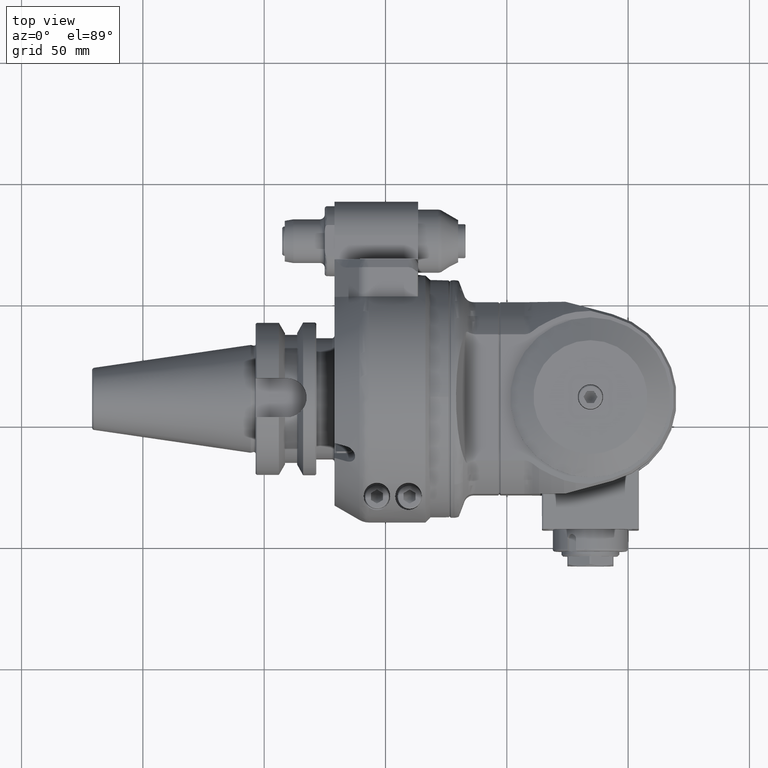
[diagram: clean part render]
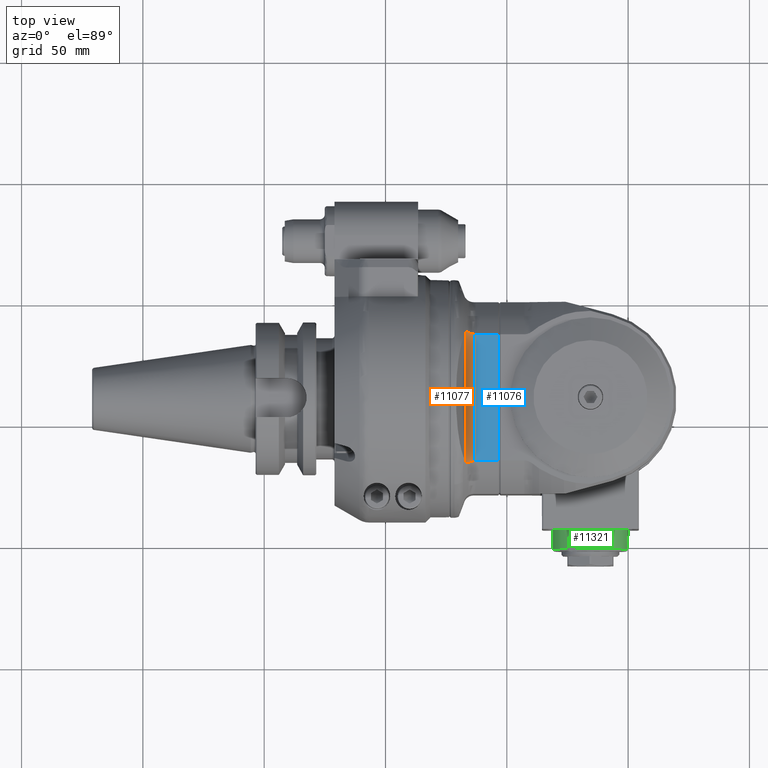
[diagram: same view with three faces highlighted in distinct colors, each labeled with its STEP entity id]
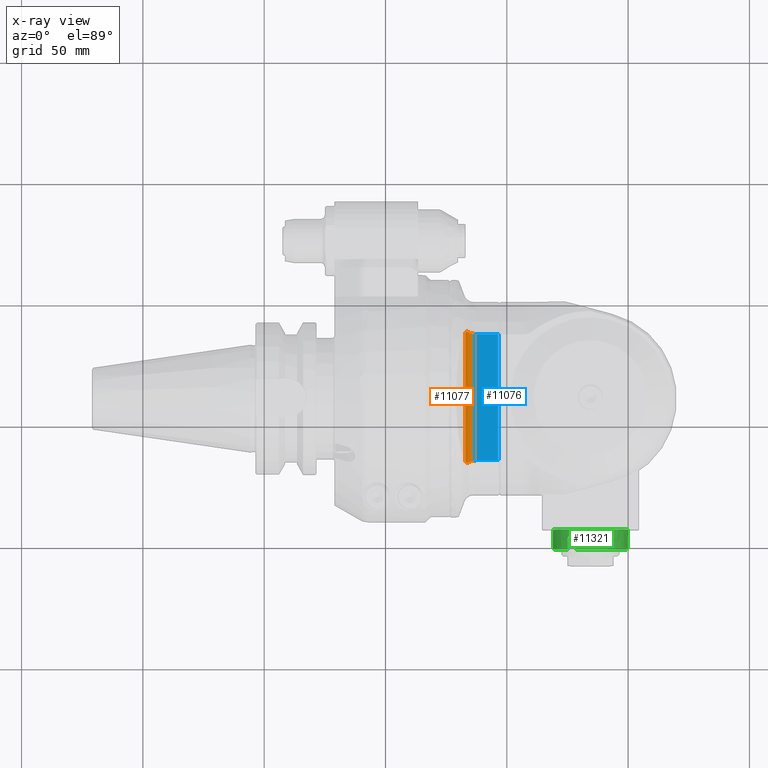
[diagram: x-ray of the same camera — body ghosted, the three highlighted faces saturated]
A machine part, top view with three faces highlighted in distinct colors.
The next image is the same camera in x-ray (body ghosted, the three faces saturated) — at least one of them is partly hidden behind the body in this view.
Their STEP definitions:

[orange] entity #11077 — the highlighted cylindrical surface (edge-blend (fillet) strip) has radius 4 mm, axis along (-0, -1, -0).
#84=CYLINDRICAL_SURFACE('',#11874,4.);
#1064=FACE_OUTER_BOUND('',#1763,.T.);
#1763=EDGE_LOOP('',(#7601,#7602,#7603,#7604,#7605,#7606));
#2580=LINE('',#16788,#3375);
#2583=LINE('',#16826,#3378);
#3375=VECTOR('',#13281,52.04411257838);
#3378=VECTOR('',#13286,53.07718683465);
#4092=B_SPLINE_CURVE_WITH_KNOTS('',3,(#16803,#16804,#16805,#16806,#16807,
#16808,#16809),.UNSPECIFIED.,.F.,.F.,(4,3,4),(-1.65922894939609,-1.39728854298585,
-1.3425854538473),.UNSPECIFIED.);
#4093=B_SPLINE_CURVE_WITH_KNOTS('',3,(#16811,#16812,#16813,#16814,#16815,
#16816,#16817,#16818,#16819,#16820,#16821,#16822,#16823,#16824),
 .UNSPECIFIED.,.F.,.F.,(4,2,2,2,2,2,4),(2.6658845095706,2.6959168155077,
2.74491415487439,2.79391149424107,2.84067867142616,2.88744584861126,2.89249356968134),
 .UNSPECIFIED.);
#4094=B_SPLINE_CURVE_WITH_KNOTS('',3,(#16828,#16829,#16830,#16831,#16832,
#16833,#16834,#16835,#16836,#16837,#16838,#16839,#16840,#16841),
 .UNSPECIFIED.,.F.,.F.,(4,2,2,2,2,2,4),(8.42520728345144,8.4302550045161,
8.4770221817012,8.52378935888629,8.57278669825297,8.62178403761966,8.65181634355813),
 .UNSPECIFIED.);
#4095=B_SPLINE_CURVE_WITH_KNOTS('',3,(#16842,#16843,#16844,#16845,#16846,
#16847,#16848),.UNSPECIFIED.,.F.,.F.,(4,3,4),(-3.44264118147774,-3.26853732629867,
-3.232802311775),.UNSPECIFIED.);
#4614=VERTEX_POINT('',#16786);
#4615=VERTEX_POINT('',#16787);
#4618=VERTEX_POINT('',#16802);
#4619=VERTEX_POINT('',#16810);
#4620=VERTEX_POINT('',#16825);
#4621=VERTEX_POINT('',#16827);
#5788=EDGE_CURVE('',#4614,#4615,#2580,.T.);
#5793=EDGE_CURVE('',#4615,#4618,#4092,.T.);
#5794=EDGE_CURVE('',#4619,#4618,#4093,.T.);
#5795=EDGE_CURVE('',#4619,#4620,#2583,.T.);
#5796=EDGE_CURVE('',#4621,#4620,#4094,.T.);
#5797=EDGE_CURVE('',#4621,#4614,#4095,.T.);
#7601=ORIENTED_EDGE('',*,*,#5788,.T.);
#7602=ORIENTED_EDGE('',*,*,#5793,.T.);
#7603=ORIENTED_EDGE('',*,*,#5794,.F.);
#7604=ORIENTED_EDGE('',*,*,#5795,.T.);
#7605=ORIENTED_EDGE('',*,*,#5796,.F.);
#7606=ORIENTED_EDGE('',*,*,#5797,.T.);
#11077=ADVANCED_FACE('',(#1064),#84,.F.);
#11874=AXIS2_PLACEMENT_3D('',#16801,#13284,#13285);
#13281=DIRECTION('',(-4.985147439005E-12,2.457472623853E-11,-1.));
#13284=DIRECTION('center_axis',(0.,0.,1.));
#13285=DIRECTION('ref_axis',(0.,1.,0.));
#13286=DIRECTION('',(-4.136573892543E-14,1.147263374081E-13,1.));
#16786=CARTESIAN_POINT('',(49.3008302109107,35.4999998792733,26.0220542775929));
#16787=CARTESIAN_POINT('',(49.300830210705,35.4999998796997,-26.0220542776161));
#16788=CARTESIAN_POINT('',(49.30083022615,35.49999963782,26.02205629274));
#16801=CARTESIAN_POINT('Origin',(49.30083015284,39.5,0.));
#16802=CARTESIAN_POINT('',(46.82842712475,36.3556044672,-26.8093457557));
#16803=CARTESIAN_POINT('Ctrl Pts',(49.3008302103751,35.5,-26.0220542754333));
#16804=CARTESIAN_POINT('Ctrl Pts',(48.5054864936385,35.49999998856,-26.1422721695277));
#16805=CARTESIAN_POINT('Ctrl Pts',(47.7404124742003,35.7544284716347,-26.3457342390481));
#16806=CARTESIAN_POINT('Ctrl Pts',(47.1644050016656,36.1183306528536,-26.6254588112142));
#16807=CARTESIAN_POINT('Ctrl Pts',(47.0441128002967,36.1943272267681,-26.6838759085042));
#16808=CARTESIAN_POINT('Ctrl Pts',(46.9322578739735,36.2739635107392,-26.745110994073));
#16809=CARTESIAN_POINT('Ctrl Pts',(46.8284271247479,36.3556044672018,-26.8093457556944));
#16810=CARTESIAN_POINT('',(45.5420596697,38.13191942669,-26.53859341733));
#16811=CARTESIAN_POINT('Ctrl Pts',(45.5420596696995,38.1319194266887,-26.5385934173287));
#16812=CARTESIAN_POINT('Ctrl Pts',(45.5692385130289,38.0572461683549,-26.5983087746406));
#16813=CARTESIAN_POINT('Ctrl Pts',(45.5995423594512,37.9808596693294,-26.6545391014777));
#16814=CARTESIAN_POINT('Ctrl Pts',(45.689454326532,37.7744725044755,-26.7913479993843));
#16815=CARTESIAN_POINT('Ctrl Pts',(45.7606254649951,37.6305287559443,-26.8708035245897));
#16816=CARTESIAN_POINT('Ctrl Pts',(45.9290424087627,37.341523798886,-26.984453906537));
#16817=CARTESIAN_POINT('Ctrl Pts',(46.026639483956,37.1964665607237,-27.0181374710907));
#16818=CARTESIAN_POINT('Ctrl Pts',(46.2204934076215,36.943488539093,-27.0360547337205));
#16819=CARTESIAN_POINT('Ctrl Pts',(46.3313118758777,36.8150116191118,-27.0237990627872));
#16820=CARTESIAN_POINT('Ctrl Pts',(46.5624311985908,36.5796622635566,-26.9537138165378));
#16821=CARTESIAN_POINT('Ctrl Pts',(46.6826589426715,36.4725916747272,-26.8963093571376));
#16822=CARTESIAN_POINT('Ctrl Pts',(46.8047878290806,36.3742991248609,-26.8238246033179));
#16823=CARTESIAN_POINT('Ctrl Pts',(46.8166329311371,36.3648781096851,-26.8166422186515));
#16824=CARTESIAN_POINT('Ctrl Pts',(46.8284271247492,36.3556044672008,-26.8093457556976));
#16825=CARTESIAN_POINT('',(45.5420596697,38.1319194267,26.53859341732));
#16826=CARTESIAN_POINT('',(45.5420596697,38.13191942669,-26.53859341733));
#16827=CARTESIAN_POINT('',(46.82842712471,36.35560446723,26.80934575572));
#16828=CARTESIAN_POINT('Ctrl Pts',(46.8284271247112,36.3556044672307,26.8093457557211));
#16829=CARTESIAN_POINT('Ctrl Pts',(46.8166329311117,36.3648781097054,26.8166422186669));
#16830=CARTESIAN_POINT('Ctrl Pts',(46.8047878290678,36.3742991248712,26.8238246033255));
#16831=CARTESIAN_POINT('Ctrl Pts',(46.6826589426715,36.4725916747272,26.8963093571376));
#16832=CARTESIAN_POINT('Ctrl Pts',(46.5624311985908,36.5796622635566,26.9537138165378));
#16833=CARTESIAN_POINT('Ctrl Pts',(46.3313118758777,36.8150116191118,27.0237990627872));
#16834=CARTESIAN_POINT('Ctrl Pts',(46.2204934076215,36.943488539093,27.0360547337205));
#16835=CARTESIAN_POINT('Ctrl Pts',(46.026639483956,37.1964665607237,27.0181374710907));
#16836=CARTESIAN_POINT('Ctrl Pts',(45.9290424087627,37.3415237988859,26.984453906537));
#16837=CARTESIAN_POINT('Ctrl Pts',(45.760625464995,37.6305287559443,26.8708035245897));
#16838=CARTESIAN_POINT('Ctrl Pts',(45.689454326532,37.7744725044755,26.7913479993843));
#16839=CARTESIAN_POINT('Ctrl Pts',(45.5995423594497,37.9808596693329,26.6545391014754));
#16840=CARTESIAN_POINT('Ctrl Pts',(45.5692385130261,38.0572461683618,26.5983087746355));
#16841=CARTESIAN_POINT('Ctrl Pts',(45.5420596696958,38.1319194266989,26.5385934173205));
#16842=CARTESIAN_POINT('Ctrl Pts',(46.82842712471,36.3556044672317,26.8093457557179));
#16843=CARTESIAN_POINT('Ctrl Pts',(47.3332584926103,35.958661210671,26.4970324687684));
#16844=CARTESIAN_POINT('Ctrl Pts',(48.0406964694671,35.6241588293982,26.2587953449599));
#16845=CARTESIAN_POINT('Ctrl Pts',(48.8160153550736,35.529489376432,26.1060979328915));
#16846=CARTESIAN_POINT('Ctrl Pts',(48.9751504391826,35.5100583634127,26.0747566151913));
#16847=CARTESIAN_POINT('Ctrl Pts',(49.1373461768559,35.4999999976401,26.046765234748));
#16848=CARTESIAN_POINT('Ctrl Pts',(49.3008302105796,35.5,26.0220542754024));

[blue] entity #11076 — the highlighted planar face has unit normal (0, -0, 1).
#1063=FACE_OUTER_BOUND('',#1762,.T.);
#1762=EDGE_LOOP('',(#7595,#7596,#7597,#7598,#7599,#7600));
#2578=LINE('',#16779,#3373);
#2580=LINE('',#16788,#3375);
#2581=LINE('',#16794,#3376);
#2582=LINE('',#16796,#3377);
#3373=VECTOR('',#13277,51.99038372623);
#3375=VECTOR('',#13281,52.04411257838);
#3376=VECTOR('',#13282,9.34314575068412);
#3377=VECTOR('',#13283,9.34314575065611);
#4090=B_SPLINE_CURVE_WITH_KNOTS('',3,(#16790,#16791,#16792,#16793),
 .UNSPECIFIED.,.F.,.F.,(4,4),(-1.52896138526577,-1.49450354649291),
 .UNSPECIFIED.);
#4091=B_SPLINE_CURVE_WITH_KNOTS('',3,(#16797,#16798,#16799,#16800),
 .UNSPECIFIED.,.F.,.F.,(4,4),(-1.49450354648957,-1.46004570769395),
 .UNSPECIFIED.);
#4611=VERTEX_POINT('',#16772);
#4612=VERTEX_POINT('',#16778);
#4614=VERTEX_POINT('',#16786);
#4615=VERTEX_POINT('',#16787);
#4616=VERTEX_POINT('',#16789);
#4617=VERTEX_POINT('',#16795);
#5785=EDGE_CURVE('',#4612,#4611,#2578,.T.);
#5788=EDGE_CURVE('',#4614,#4615,#2580,.T.);
#5789=EDGE_CURVE('',#4614,#4616,#4090,.T.);
#5790=EDGE_CURVE('',#4612,#4616,#2581,.T.);
#5791=EDGE_CURVE('',#4617,#4611,#2582,.T.);
#5792=EDGE_CURVE('',#4617,#4615,#4091,.T.);
#7595=ORIENTED_EDGE('',*,*,#5788,.F.);
#7596=ORIENTED_EDGE('',*,*,#5789,.T.);
#7597=ORIENTED_EDGE('',*,*,#5790,.F.);
#7598=ORIENTED_EDGE('',*,*,#5785,.T.);
#7599=ORIENTED_EDGE('',*,*,#5791,.F.);
#7600=ORIENTED_EDGE('',*,*,#5792,.T.);
#10704=PLANE('',#11873);
#11076=ADVANCED_FACE('',(#1063),#10704,.T.);
#11873=AXIS2_PLACEMENT_3D('',#16785,#13279,#13280);
#13277=DIRECTION('',(0.,1.066011239331E-14,-1.));
#13279=DIRECTION('center_axis',(0.,1.,0.));
#13280=DIRECTION('ref_axis',(1.,0.,0.));
#13281=DIRECTION('',(-4.985147439005E-12,2.457472623853E-11,-1.));
#13282=DIRECTION('',(-0.999999999999988,5.99464222955393E-8,-1.44745797196998E-7));
#13283=DIRECTION('',(0.999999999999988,-6.03921339411193E-8,-1.45821953774398E-7));
#16772=CARTESIAN_POINT('',(59.,35.5,-25.99519186311));
#16778=CARTESIAN_POINT('',(59.,35.5,25.99519186311));
#16779=CARTESIAN_POINT('',(59.,35.5,25.99519186311));
#16785=CARTESIAN_POINT('Origin',(56.15959713349,35.5,25.99519186311));
#16786=CARTESIAN_POINT('',(49.3008302109107,35.4999998792733,26.0220542775929));
#16787=CARTESIAN_POINT('',(49.300830210705,35.4999998796997,-26.0220542776161));
#16788=CARTESIAN_POINT('',(49.30083022615,35.49999963782,26.02205629274));
#16789=CARTESIAN_POINT('',(49.6568542494565,35.5000003310998,25.9951912151145));
#16790=CARTESIAN_POINT('Ctrl Pts',(49.3008302105796,35.5,26.0220542754024));
#16791=CARTESIAN_POINT('Ctrl Pts',(49.4218721277168,35.5,26.0037585346155));
#16792=CARTESIAN_POINT('Ctrl Pts',(49.5419947869026,35.5,25.9951918631119));
#16793=CARTESIAN_POINT('Ctrl Pts',(49.65685424949,35.5,25.9951918631119));
#16794=CARTESIAN_POINT('',(59.,35.5,25.99519186311));
#16795=CARTESIAN_POINT('',(49.6568542494901,35.5000003289525,-25.9951912165918));
#16796=CARTESIAN_POINT('',(49.65685424934,35.50000056425,-25.99519050068));
#16797=CARTESIAN_POINT('Ctrl Pts',(49.65685424949,35.5,-25.9951918631119));
#16798=CARTESIAN_POINT('Ctrl Pts',(49.541994786838,35.5,-25.9951918631119));
#16799=CARTESIAN_POINT('Ctrl Pts',(49.4218721275815,35.5,-26.0037585346254));
#16800=CARTESIAN_POINT('Ctrl Pts',(49.3008302103751,35.5,-26.0220542754333));

[green] entity #11321 — the highlighted cylindrical surface (bore or boss wall) has radius 15.5 mm, axis along (-0, -1, -0).
#134=CYLINDRICAL_SURFACE('',#12292,15.5);
#712=CIRCLE('',#12290,15.5);
#713=CIRCLE('',#12291,15.5);
#714=CIRCLE('',#12293,15.5);
#715=CIRCLE('',#12294,15.5);
#716=CIRCLE('',#12295,15.5);
#717=CIRCLE('',#12296,15.5);
#1308=FACE_OUTER_BOUND('',#2042,.T.);
#2042=EDGE_LOOP('',(#8758,#8759,#8760,#8761,#8762,#8763,#8764,#8765,#8766,
#8767,#8768,#8769,#8770,#8771,#8772,#8773,#8774));
#2843=LINE('',#18343,#3638);
#2844=LINE('',#18364,#3639);
#2845=LINE('',#18367,#3640);
#2846=LINE('',#18371,#3641);
#2847=LINE('',#18392,#3642);
#2848=LINE('',#18396,#3643);
#2849=LINE('',#18416,#3644);
#3638=VECTOR('',#14384,4.);
#3639=VECTOR('',#14385,4.);
#3640=VECTOR('',#14388,15.5);
#3641=VECTOR('',#14391,4.);
#3642=VECTOR('',#14392,4.);
#3643=VECTOR('',#14395,4.);
#3644=VECTOR('',#14396,4.);
#4126=B_SPLINE_CURVE_WITH_KNOTS('',3,(#18345,#18346,#18347,#18348,#18349,
#18350,#18351,#18352,#18353,#18354,#18355,#18356,#18357,#18358,#18359,#18360,
#18361,#18362),.UNSPECIFIED.,.F.,.F.,(4,2,2,2,2,2,2,2,4),(-1.206843167428,
-1.13141511138802,-1.05598705534804,-0.980559715459517,-0.905132375570997,
-0.829705035682476,-0.754277695793956,-0.678849639753977,-0.603421583713998),
 .UNSPECIFIED.);
#4127=B_SPLINE_CURVE_WITH_KNOTS('',3,(#18373,#18374,#18375,#18376,#18377,
#18378,#18379,#18380,#18381,#18382,#18383,#18384,#18385,#18386,#18387,#18388,
#18389,#18390),.UNSPECIFIED.,.F.,.F.,(4,2,2,2,2,2,2,2,4),(-1.206843167428,
-1.13141511138802,-1.05598705534804,-0.980559715459517,-0.905132375570997,
-0.829705035682476,-0.754277695793956,-0.678849639753977,-0.603421583713998),
 .UNSPECIFIED.);
#4128=B_SPLINE_CURVE_WITH_KNOTS('',3,(#18398,#18399,#18400,#18401,#18402,
#18403,#18404,#18405,#18406,#18407,#18408,#18409,#18410,#18411,#18412,#18413,
#18414,#18415),.UNSPECIFIED.,.F.,.F.,(4,2,2,2,2,2,2,2,4),(-1.206843167428,
-1.13141511138802,-1.05598705534804,-0.980559715459517,-0.905132375570997,
-0.829705035682476,-0.754277695793956,-0.678849639753977,-0.603421583713998),
 .UNSPECIFIED.);
#4953=VERTEX_POINT('',#18333);
#4954=VERTEX_POINT('',#18334);
#4955=VERTEX_POINT('',#18339);
#4956=VERTEX_POINT('',#18340);
#4957=VERTEX_POINT('',#18342);
#4958=VERTEX_POINT('',#18344);
#4959=VERTEX_POINT('',#18363);
#4960=VERTEX_POINT('',#18365);
#4961=VERTEX_POINT('',#18368);
#4962=VERTEX_POINT('',#18370);
#4963=VERTEX_POINT('',#18372);
#4964=VERTEX_POINT('',#18391);
#4965=VERTEX_POINT('',#18393);
#4966=VERTEX_POINT('',#18395);
#4967=VERTEX_POINT('',#18397);
#6320=EDGE_CURVE('',#4953,#4954,#712,.T.);
#6322=EDGE_CURVE('',#4954,#4953,#713,.T.);
#6323=EDGE_CURVE('',#4955,#4956,#714,.T.);
#6324=EDGE_CURVE('',#4955,#4957,#2843,.T.);
#6325=EDGE_CURVE('',#4958,#4957,#4126,.F.);
#6326=EDGE_CURVE('',#4958,#4959,#2844,.T.);
#6327=EDGE_CURVE('',#4960,#4959,#715,.T.);
#6328=EDGE_CURVE('',#4960,#4953,#2845,.T.);
#6329=EDGE_CURVE('',#4961,#4960,#716,.T.);
#6330=EDGE_CURVE('',#4961,#4962,#2846,.T.);
#6331=EDGE_CURVE('',#4963,#4962,#4127,.F.);
#6332=EDGE_CURVE('',#4963,#4964,#2847,.T.);
#6333=EDGE_CURVE('',#4964,#4965,#717,.T.);
#6334=EDGE_CURVE('',#4965,#4966,#2848,.T.);
#6335=EDGE_CURVE('',#4967,#4966,#4128,.F.);
#6336=EDGE_CURVE('',#4967,#4956,#2849,.T.);
#8758=ORIENTED_EDGE('',*,*,#6323,.F.);
#8759=ORIENTED_EDGE('',*,*,#6324,.T.);
#8760=ORIENTED_EDGE('',*,*,#6325,.F.);
#8761=ORIENTED_EDGE('',*,*,#6326,.T.);
#8762=ORIENTED_EDGE('',*,*,#6327,.F.);
#8763=ORIENTED_EDGE('',*,*,#6328,.T.);
#8764=ORIENTED_EDGE('',*,*,#6322,.F.);
#8765=ORIENTED_EDGE('',*,*,#6320,.F.);
#8766=ORIENTED_EDGE('',*,*,#6328,.F.);
#8767=ORIENTED_EDGE('',*,*,#6329,.F.);
#8768=ORIENTED_EDGE('',*,*,#6330,.T.);
#8769=ORIENTED_EDGE('',*,*,#6331,.F.);
#8770=ORIENTED_EDGE('',*,*,#6332,.T.);
#8771=ORIENTED_EDGE('',*,*,#6333,.T.);
#8772=ORIENTED_EDGE('',*,*,#6334,.T.);
#8773=ORIENTED_EDGE('',*,*,#6335,.F.);
#8774=ORIENTED_EDGE('',*,*,#6336,.T.);
#11321=ADVANCED_FACE('',(#1308),#134,.T.);
#12290=AXIS2_PLACEMENT_3D('',#18335,#14375,#14376);
#12291=AXIS2_PLACEMENT_3D('',#18337,#14378,#14379);
#12292=AXIS2_PLACEMENT_3D('',#18338,#14380,#14381);
#12293=AXIS2_PLACEMENT_3D('',#18341,#14382,#14383);
#12294=AXIS2_PLACEMENT_3D('',#18366,#14386,#14387);
#12295=AXIS2_PLACEMENT_3D('',#18369,#14389,#14390);
#12296=AXIS2_PLACEMENT_3D('',#18394,#14393,#14394);
#14375=DIRECTION('center_axis',(0.,0.,-1.));
#14376=DIRECTION('ref_axis',(1.,0.,0.));
#14378=DIRECTION('center_axis',(0.,0.,-1.));
#14379=DIRECTION('ref_axis',(1.,0.,0.));
#14380=DIRECTION('center_axis',(0.,0.,1.));
#14381=DIRECTION('ref_axis',(0.,1.,0.));
#14382=DIRECTION('center_axis',(0.,0.,1.));
#14383=DIRECTION('ref_axis',(0.99164039670577,0.129032258064496,0.));
#14384=DIRECTION('',(0.,0.,-1.));
#14385=DIRECTION('',(0.,0.,1.));
#14386=DIRECTION('center_axis',(0.,0.,1.));
#14387=DIRECTION('ref_axis',(-0.384074984961317,-0.923301903998342,0.));
#14388=DIRECTION('',(0.,0.,-1.));
#14389=DIRECTION('center_axis',(0.,0.,1.));
#14390=DIRECTION('ref_axis',(-0.384074984961317,-0.923301903998342,0.));
#14391=DIRECTION('',(0.,0.,-1.));
#14392=DIRECTION('',(0.,0.,1.));
#14393=DIRECTION('center_axis',(0.,0.,-1.));
#14394=DIRECTION('ref_axis',(-0.607565411744416,-0.794269645933821,0.));
#14395=DIRECTION('',(0.,0.,-1.));
#14396=DIRECTION('',(0.,0.,1.));
#18333=CARTESIAN_POINT('',(97.,-15.5,54.));
#18334=CARTESIAN_POINT('',(112.5,1.8982025386784E-15,54.));
#18335=CARTESIAN_POINT('Origin',(97.,0.,54.));
#18337=CARTESIAN_POINT('Origin',(97.,0.,54.));
#18338=CARTESIAN_POINT('Origin',(97.,0.,46.));
#18339=CARTESIAN_POINT('',(112.37042614894,2.,62.));
#18340=CARTESIAN_POINT('',(91.046837733099,14.31117951197,62.));
#18341=CARTESIAN_POINT('Origin',(97.,0.,62.));
#18342=CARTESIAN_POINT('',(112.37042614894,2.,58.));
#18343=CARTESIAN_POINT('',(112.37042614894,2.,62.));
#18344=CARTESIAN_POINT('',(112.37042614894,-2.,58.));
#18345=CARTESIAN_POINT('Ctrl Pts',(112.370426148939,1.99999999999988,58.));
#18346=CARTESIAN_POINT('Ctrl Pts',(112.370426148939,1.99999999999988,57.7485731465334));
#18347=CARTESIAN_POINT('Ctrl Pts',(112.377232006492,1.94969482040717,57.4805812167095));
#18348=CARTESIAN_POINT('Ctrl Pts',(112.401746678768,1.74550085672817,56.987906815437));
#18349=CARTESIAN_POINT('Ctrl Pts',(112.419094088593,1.59162725855339,56.7632001338073));
#18350=CARTESIAN_POINT('Ctrl Pts',(112.451603837941,1.2368015506464,56.4083744259003));
#18351=CARTESIAN_POINT('Ctrl Pts',(112.468888019386,1.01209413761881,56.2544995076054));
#18352=CARTESIAN_POINT('Ctrl Pts',(112.493257785627,0.519417256101511,56.0503045773038));
#18353=CARTESIAN_POINT('Ctrl Pts',(112.5,0.251424466294949,56.));
#18354=CARTESIAN_POINT('Ctrl Pts',(112.5,-0.251424466295186,56.));
#18355=CARTESIAN_POINT('Ctrl Pts',(112.493257785627,-0.519417256101734,
56.0503045773038));
#18356=CARTESIAN_POINT('Ctrl Pts',(112.468888019386,-1.01209413761905,56.2544995076053));
#18357=CARTESIAN_POINT('Ctrl Pts',(112.451603837941,-1.23680155064663,56.4083744259003));
#18358=CARTESIAN_POINT('Ctrl Pts',(112.419094088593,-1.59162725855362,56.7632001338073));
#18359=CARTESIAN_POINT('Ctrl Pts',(112.401746678767,-1.74550085672842,56.987906815437));
#18360=CARTESIAN_POINT('Ctrl Pts',(112.377232006492,-1.94969482040741,57.4805812167095));
#18361=CARTESIAN_POINT('Ctrl Pts',(112.370426148939,-2.00000000000012,57.7485731465334));
#18362=CARTESIAN_POINT('Ctrl Pts',(112.370426148939,-2.00000000000012,58.));
#18363=CARTESIAN_POINT('',(112.37042614894,-2.,62.));
#18364=CARTESIAN_POINT('',(112.37042614894,-2.,58.));
#18365=CARTESIAN_POINT('',(97.,-15.5,62.));
#18366=CARTESIAN_POINT('Origin',(97.,0.,62.));
#18367=CARTESIAN_POINT('',(97.,-15.5,46.));
#18368=CARTESIAN_POINT('',(91.046837733099,-14.31117951197,62.));
#18369=CARTESIAN_POINT('Origin',(97.,0.,62.));
#18370=CARTESIAN_POINT('',(91.046837733099,-14.31117951197,58.));
#18371=CARTESIAN_POINT('',(91.046837733099,-14.31117951197,62.));
#18372=CARTESIAN_POINT('',(87.582736117961,-12.31117951197,58.));
#18373=CARTESIAN_POINT('Ctrl Pts',(91.0468377330987,-14.3111795119739,58.));
#18374=CARTESIAN_POINT('Ctrl Pts',(91.0468377330987,-14.3111795119739,57.7485731465334));
#18375=CARTESIAN_POINT('Ctrl Pts',(90.999869240853,-14.291920967713,57.4805812167095));
#18376=CARTESIAN_POINT('Ctrl Pts',(90.81077474487,-14.2110543148292,56.987906815437));
#18377=CARTESIAN_POINT('Ctrl Pts',(90.6688425949662,-14.1491408133405,56.7632001338073));
#18378=CARTESIAN_POINT('Ctrl Pts',(90.345299643329,-13.9998822281929,56.4083744259003));
#18379=CARTESIAN_POINT('Ctrl Pts',(90.1420552245057,-13.9024970618946,56.2544995076054));
#18380=CARTESIAN_POINT('Ctrl Pts',(89.7031996461341,-13.6772634577845,56.0503045773038));
#18381=CARTESIAN_POINT('Ctrl Pts',(89.467739974944,-13.5491059918061,56.));
#18382=CARTESIAN_POINT('Ctrl Pts',(89.0322600250551,-13.297681525511,56.));
#18383=CARTESIAN_POINT('Ctrl Pts',(88.8035425682381,-13.1578462016829,56.0503045773038));
#18384=CARTESIAN_POINT('Ctrl Pts',(88.3890567561071,-12.8904029242756,56.2544995076053));
#18385=CARTESIAN_POINT('Ctrl Pts',(88.2030965187294,-12.7630806775463,56.4083744259003));
#18386=CARTESIAN_POINT('Ctrl Pts',(87.91206331644,-12.5575135547869,56.7632001338073));
#18387=CARTESIAN_POINT('Ctrl Pts',(87.7874785763616,-12.4655534581008,56.9879068154371));
#18388=CARTESIAN_POINT('Ctrl Pts',(87.6228987526538,-12.3422261473056,57.4805812167095));
#18389=CARTESIAN_POINT('Ctrl Pts',(87.582736117961,-12.3111795119738,57.7485731465334));
#18390=CARTESIAN_POINT('Ctrl Pts',(87.582736117961,-12.3111795119738,58.));
#18391=CARTESIAN_POINT('',(87.582736117961,-12.31117951197,62.));
#18392=CARTESIAN_POINT('',(87.582736117961,-12.31117951197,58.));
#18393=CARTESIAN_POINT('',(87.582736117961,12.31117951197,62.));
#18394=CARTESIAN_POINT('Origin',(97.,0.,62.));
#18395=CARTESIAN_POINT('',(87.582736117961,12.31117951197,58.));
#18396=CARTESIAN_POINT('',(87.582736117961,12.31117951197,62.));
#18397=CARTESIAN_POINT('',(91.046837733099,14.31117951197,58.));
#18398=CARTESIAN_POINT('Ctrl Pts',(87.5827361179617,12.3111795119744,58.));
#18399=CARTESIAN_POINT('Ctrl Pts',(87.5827361179617,12.3111795119744,57.7485731465334));
#18400=CARTESIAN_POINT('Ctrl Pts',(87.6228987526545,12.3422261473061,57.4805812167095));
#18401=CARTESIAN_POINT('Ctrl Pts',(87.7874785763624,12.4655534581013,56.987906815437));
#18402=CARTESIAN_POINT('Ctrl Pts',(87.9120633164407,12.5575135547874,56.7632001338073));
#18403=CARTESIAN_POINT('Ctrl Pts',(88.2030965187301,12.7630806775468,56.4083744259003));
#18404=CARTESIAN_POINT('Ctrl Pts',(88.3890567561078,12.8904029242761,56.2544995076053));
#18405=CARTESIAN_POINT('Ctrl Pts',(88.8035425682389,13.1578462016833,56.0503045773038));
#18406=CARTESIAN_POINT('Ctrl Pts',(89.0322600250558,13.2976815255115,56.));
#18407=CARTESIAN_POINT('Ctrl Pts',(89.4677399749448,13.5491059918065,56.));
#18408=CARTESIAN_POINT('Ctrl Pts',(89.7031996461349,13.6772634577849,56.0503045773038));
#18409=CARTESIAN_POINT('Ctrl Pts',(90.1420552245064,13.902497061895,56.2544995076054));
#18410=CARTESIAN_POINT('Ctrl Pts',(90.3452996433298,13.9998822281932,56.4083744259003));
#18411=CARTESIAN_POINT('Ctrl Pts',(90.668842594967,14.1491408133408,56.7632001338073));
#18412=CARTESIAN_POINT('Ctrl Pts',(90.8107747448708,14.2110543148296,56.9879068154371));
#18413=CARTESIAN_POINT('Ctrl Pts',(90.9998692408538,14.2919209677133,57.4805812167095));
#18414=CARTESIAN_POINT('Ctrl Pts',(91.0468377330995,14.3111795119743,57.7485731465334));
#18415=CARTESIAN_POINT('Ctrl Pts',(91.0468377330995,14.3111795119743,58.));
#18416=CARTESIAN_POINT('',(91.046837733099,14.31117951197,58.));